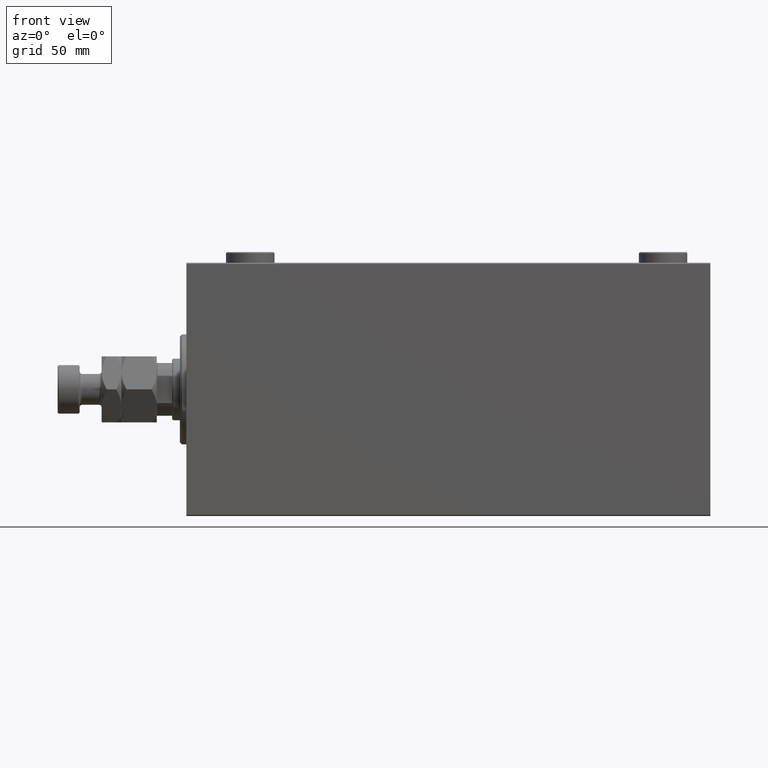
[diagram: clean part render]
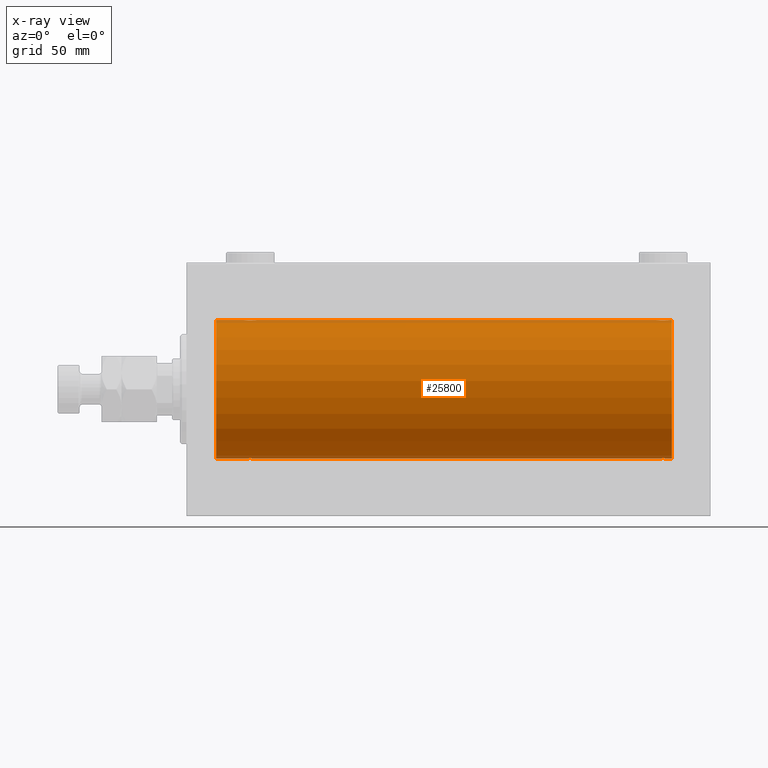
[diagram: x-ray — body ghosted, one internal face saturated and labeled with its STEP entity id]
A machine part, front view, then the same camera in x-ray: the body is ghosted and one INTERNAL B-rep face — a face not visible from any outside direction — is saturated and labeled: STEP entity #25800.
In plain terms, the highlighted cylindrical surface (partial cylindrical patch) has radius 31.5 mm, axis along (-1, -0, -0).
Its self-contained STEP definition (entity closure, byte-faithful):
#451 = CARTESIAN_POINT ( 'NONE',  ( 29.20046458974095671, -2.999845816735294157, -31.35683219171744085 ) ) ;
#1158 = CARTESIAN_POINT ( 'NONE',  ( 219.4999999999999716, 4.699731104275013306E-15, 31.50000000000000000 ) ) ;
#1202 = LINE ( 'NONE', #20602, #40269 ) ;
#1287 = DIRECTION ( 'NONE',  ( 0.000000000000000000, 0.000000000000000000, 1.000000000000000000 ) ) ;
#1400 = CARTESIAN_POINT ( 'NONE',  ( 28.03484270189360217, -2.847307171789034808, -31.37114183851420179 ) ) ;
#1773 = CARTESIAN_POINT ( 'NONE',  ( 213.8980785956084389, -1.506272792558333462, -31.46439306106695710 ) ) ;
#1790 = CARTESIAN_POINT ( 'NONE',  ( 30.82704225370267892, -2.387531469909770276, 31.40957782495776129 ) ) ;
#2378 = CARTESIAN_POINT ( 'NONE',  ( 213.4999999999999716, -2.739609923574792981E-14, -31.50000000000000000 ) ) ;
#3203 = CARTESIAN_POINT ( 'NONE',  ( 220.5000000000000000, 0.000000000000000000, 0.000000000000000000 ) ) ;
#3331 = CARTESIAN_POINT ( 'NONE',  ( 31.84660463742499559, -0.9669616078781945179, -31.48567319468626735 ) ) ;
#3435 = ORIENTED_EDGE ( 'NONE', *, *, #4041, .T. ) ;
#3653 = CIRCLE ( 'NONE', #36254, 31.50000000000000000 ) ;
#4020 = ORIENTED_EDGE ( 'NONE', *, *, #24103, .T. ) ;
#4034 = CARTESIAN_POINT ( 'NONE',  ( 30.50456285006998769, -2.602826974226392309, -31.39247100434485560 ) ) ;
#4041 = EDGE_CURVE ( 'NONE', #25665, #26599, #35776, .T. ) ;
#4261 = CARTESIAN_POINT ( 'NONE',  ( 216.8911454733994049, -2.980809450819698281, 31.35867074198615967 ) ) ;
#4501 = CARTESIAN_POINT ( 'NONE',  ( 213.5958054926194052, -0.7775502215293850217, 31.49099686045560276 ) ) ;
#4743 = CARTESIAN_POINT ( 'NONE',  ( 26.30470357640989576, -1.331741824817665343, -31.47235367475392920 ) ) ;
#5137 = CARTESIAN_POINT ( 'NONE',  ( 220.5000000000000000, 0.000000000000000000, 31.50000000000000000 ) ) ;
#5359 = CARTESIAN_POINT ( 'NONE',  ( 27.01539640075335669, -2.258226318633785201, 31.41925597582825702 ) ) ;
#5442 = CARTESIAN_POINT ( 'NONE',  ( 26.39807859560848158, -1.506272792558332130, -31.46439306106697131 ) ) ;
#5570 = CARTESIAN_POINT ( 'NONE',  ( 215.1713458531248477, -2.696917666262923952, -31.38442820068732075 ) ) ;
#5813 = CARTESIAN_POINT ( 'NONE',  ( 29.96515729810641204, -2.847307171789037028, 31.37114183851420890 ) ) ;
#6046 = CARTESIAN_POINT ( 'NONE',  ( 29.19582294439440417, -3.000152387858486147, 31.35680286115499626 ) ) ;
#6113 = CARTESIAN_POINT ( 'NONE',  ( 219.4999999999999716, 3.857637396132320472E-15, -31.50000000000000000 ) ) ;
#6279 = CARTESIAN_POINT ( 'NONE',  ( 31.25824501903266039, -1.984587626072074285, 31.43772577203672469 ) ) ;
#6301 = DIRECTION ( 'NONE',  ( 0.000000000000000000, 0.000000000000000000, 1.000000000000000000 ) ) ;
#6486 = CARTESIAN_POINT ( 'NONE',  ( 214.9990184370385009, -2.604888532024808523, -31.39229907792057972 ) ) ;
#7599 = CARTESIAN_POINT ( 'NONE',  ( 214.2390453754387352, -1.981494824113333442, 31.43792153503156683 ) ) ;
#7600 = CARTESIAN_POINT ( 'NONE',  ( 30.33239958099164824, -2.695056442718529954, -31.38458855656185875 ) ) ;
#7839 = CARTESIAN_POINT ( 'NONE',  ( 216.1046588899990866, -2.980257240990053624, 31.35872356503797320 ) ) ;
#8030 = CARTESIAN_POINT ( 'NONE',  ( 26.00000000000000355, -2.117263226567934635E-23, 31.50000000000000000 ) ) ;
#8310 = CARTESIAN_POINT ( 'NONE',  ( 213.8028576116330157, -1.328004386210311472, 31.47251238182141719 ) ) ;
#8437 = DIRECTION ( 'NONE',  ( -1.000000000000000000, 0.000000000000000000, 0.000000000000000000 ) ) ;
#8559 = CARTESIAN_POINT ( 'NONE',  ( 218.4814346287303408, -2.261012035264779119, 31.41905495618428645 ) ) ;
#8786 = CARTESIAN_POINT ( 'NONE',  ( 26.00000000000000355, -0.3965830985361813443, -31.50000000000000711 ) ) ;
#9167 = CARTESIAN_POINT ( 'NONE',  ( 26.09580549261944427, -0.7775502215293862429, 31.49099686045558144 ) ) ;
#9375 = CARTESIAN_POINT ( 'NONE',  ( 213.4999999999999716, -2.739609923574792981E-14, -31.50000000000000000 ) ) ;
#9382 = VERTEX_POINT ( 'NONE', #22783 ) ;
#9394 = CARTESIAN_POINT ( 'NONE',  ( 26.00000000000001066, -0.1958045626907463088, 31.50000000000000711 ) ) ;
#9438 = LINE ( 'NONE', #31496, #31753 ) ;
#9471 = CARTESIAN_POINT ( 'NONE',  ( 219.4999999999999716, -0.3965830985361761263, 31.50000000000000000 ) ) ;
#9600 = CARTESIAN_POINT ( 'NONE',  ( 218.7609546245612364, -1.981494824113325226, -31.43792153503156683 ) ) ;
#9619 = CARTESIAN_POINT ( 'NONE',  ( 26.00000000000000355, -2.117263226567934635E-23, 31.50000000000000000 ) ) ;
#10027 = AXIS2_PLACEMENT_3D ( 'NONE', #26472, #8437, #1287 ) ;
#10931 = CARTESIAN_POINT ( 'NONE',  ( 215.1676004190082665, -2.695056442718522849, 31.38458855656185165 ) ) ;
#11158 = CARTESIAN_POINT ( 'NONE',  ( 32.00000000000000000, 3.857637396137448068E-15, -31.50000000000000000 ) ) ;
#11396 = CARTESIAN_POINT ( 'NONE',  ( 215.5305554434148121, -2.845838211243326032, 31.37127560316188024 ) ) ;
#11631 = CARTESIAN_POINT ( 'NONE',  ( 218.0009815629614707, -2.604888532024791203, 31.39229907792058683 ) ) ;
#12239 = DIRECTION ( 'NONE',  ( -1.000000000000000000, -0.000000000000000000, -0.000000000000000000 ) ) ;
#12341 = CARTESIAN_POINT ( 'NONE',  ( 219.1019214043915326, -1.506272792558311702, 31.46439306106696421 ) ) ;
#12863 = ORIENTED_EDGE ( 'NONE', *, *, #40443, .F. ) ;
#12928 = CARTESIAN_POINT ( 'NONE',  ( 213.5797933704996581, -0.7905881588836380924, -31.49214662150069799 ) ) ;
#12993 = DIRECTION ( 'NONE',  ( -1.000000000000000000, -0.000000000000000000, -0.000000000000000000 ) ) ;
#13433 = DIRECTION ( 'NONE',  ( -1.000000000000000000, 0.000000000000000000, 0.000000000000000000 ) ) ;
#14321 = EDGE_CURVE ( 'NONE', #14878, #43253, #35633, .T. ) ;
#14475 = ORIENTED_EDGE ( 'NONE', *, *, #15164, .F. ) ;
#14538 = CARTESIAN_POINT ( 'NONE',  ( 213.4999999999999716, -2.118130973563677748E-23, 31.50000000000000000 ) ) ;
#14713 = CARTESIAN_POINT ( 'NONE',  ( 31.90419450738055218, -0.7775502215293819130, -31.49099686045559565 ) ) ;
#14878 = VERTEX_POINT ( 'NONE', #8030 ) ;
#15164 = EDGE_CURVE ( 'NONE', #25733, #16286, #9438, .T. ) ;
#15191 = CARTESIAN_POINT ( 'NONE',  ( 217.2746909443436891, -2.904836261170101519, 31.36579955910872286 ) ) ;
#15426 = CARTESIAN_POINT ( 'NONE',  ( 216.6958229443943651, -3.000152387858483927, 31.35680286115499626 ) ) ;
#15637 = ORIENTED_EDGE ( 'NONE', *, *, #42421, .T. ) ;
#16133 = CARTESIAN_POINT ( 'NONE',  ( 218.7582450190326142, -1.984587626072069844, 31.43772577203671759 ) ) ;
#16260 = CARTESIAN_POINT ( 'NONE',  ( 213.8047035764099348, -1.331741824817684439, -31.47235367475394341 ) ) ;
#16277 = CARTESIAN_POINT ( 'NONE',  ( 31.69529642359010424, -1.331741824817659348, 31.47235367475393630 ) ) ;
#16286 = VERTEX_POINT ( 'NONE', #16914 ) ;
#16403 = ORIENTED_EDGE ( 'NONE', *, *, #45786, .T. ) ;
#16504 = CARTESIAN_POINT ( 'NONE',  ( 26.01898490608483527, -0.3904857149112033743, 31.49817436802766935 ) ) ;
#16914 = CARTESIAN_POINT ( 'NONE',  ( 219.4999999999999716, 4.699731104275013306E-15, 31.50000000000000000 ) ) ;
#16953 = CARTESIAN_POINT ( 'NONE',  ( 219.1041778127472526, -1.502389880413004031, -31.46458023642405166 ) ) ;
#16971 = CARTESIAN_POINT ( 'NONE',  ( 30.50098156296146712, -2.604888532024788983, 31.39229907792058683 ) ) ;
#17031 = DIRECTION ( 'NONE',  ( -1.000000000000000000, -0.000000000000000000, -0.000000000000000000 ) ) ;
#17258 = LINE ( 'NONE', #31740, #37961 ) ;
#17599 = DIRECTION ( 'NONE',  ( -1.000000000000000000, -0.000000000000000000, -0.000000000000000000 ) ) ;
#17817 = CARTESIAN_POINT ( 'NONE',  ( 31.26095462456130747, -1.981494824113326114, -31.43792153503156683 ) ) ;
#17925 = CYLINDRICAL_SURFACE ( 'NONE', #41840, 31.50000000000000000 ) ;
#18514 = CARTESIAN_POINT ( 'NONE',  ( 29.77881912642320827, -2.903733559410679455, -31.36590199989303684 ) ) ;
#18745 = CARTESIAN_POINT ( 'NONE',  ( 217.4651572981064191, -2.847307171789025926, 31.37114183851420179 ) ) ;
#19052 = CARTESIAN_POINT ( 'NONE',  ( 32.00000000000000000, -3.906065418435112189E-16, 31.50000000000000000 ) ) ;
#19108 = EDGE_CURVE ( 'NONE', #9382, #25665, #44511, .T. ) ;
#19458 = CARTESIAN_POINT ( 'NONE',  ( 28.80417705560560648, -3.000152387858484371, -31.35680286115500337 ) ) ;
#19690 = CARTESIAN_POINT ( 'NONE',  ( 218.8824687226662888, -1.833765390051030009, 31.44700610425690712 ) ) ;
#19692 = CARTESIAN_POINT ( 'NONE',  ( 27.49901843703856130, -2.604888532024793424, -31.39229907792058683 ) ) ;
#20071 = CARTESIAN_POINT ( 'NONE',  ( 27.49543714993000876, -2.602826974226395862, 31.39247100434485560 ) ) ;
#20521 = CARTESIAN_POINT ( 'NONE',  ( 219.4041945073804811, -0.7775502215293821351, -31.49099686045559565 ) ) ;
#20540 = CARTESIAN_POINT ( 'NONE',  ( 29.39114547339941552, -2.980809450819701834, 31.35867074198615967 ) ) ;
#20602 = CARTESIAN_POINT ( 'NONE',  ( 220.5000000000000000, 0.000000000000000000, 31.50000000000000000 ) ) ;
#20750 = CARTESIAN_POINT ( 'NONE',  ( 218.8850144227692169, -1.830470878313884553, -31.44719957596828763 ) ) ;
#20767 = CARTESIAN_POINT ( 'NONE',  ( 31.38246872266631371, -1.833765390051040223, 31.44700610425690712 ) ) ;
#21053 = DIRECTION ( 'NONE',  ( -1.000000000000000000, -0.000000000000000000, -0.000000000000000000 ) ) ;
#21549 = EDGE_CURVE ( 'NONE', #14878, #26262, #43189, .T. ) ;
#22083 = CARTESIAN_POINT ( 'NONE',  ( 213.8958221872526622, -1.502389880412993595, 31.46458023642405877 ) ) ;
#22551 = CARTESIAN_POINT ( 'NONE',  ( 213.4999999999999716, -2.118130973563677748E-23, 31.50000000000000000 ) ) ;
#22689 = VERTEX_POINT ( 'NONE', #14538 ) ;
#22783 = CARTESIAN_POINT ( 'NONE',  ( 32.00000000000000000, 3.857637396137448068E-15, -31.50000000000000000 ) ) ;
#22908 = CARTESIAN_POINT ( 'NONE',  ( 13.50000000000001243, 3.857637417314162689E-15, -31.50000000000000000 ) ) ;
#23405 = CARTESIAN_POINT ( 'NONE',  ( 28.03055544341478722, -2.845838211243333138, 31.37127560316186603 ) ) ;
#23620 = CARTESIAN_POINT ( 'NONE',  ( 217.4694445565852448, -2.845838211243344684, -31.37127560316186603 ) ) ;
#23641 = CARTESIAN_POINT ( 'NONE',  ( 26.39582218725271900, -1.502389880413001144, 31.46458023642405166 ) ) ;
#23657 = CARTESIAN_POINT ( 'NONE',  ( 26.00000000000000355, -6.595038141055444136E-15, -31.50000000000000000 ) ) ;
#23845 = CARTESIAN_POINT ( 'NONE',  ( 218.3304369148700346, -2.384935707362433099, -31.40977595730572958 ) ) ;
#23864 = CARTESIAN_POINT ( 'NONE',  ( 28.79953541025904684, -2.999845816735297266, 31.35683219171744796 ) ) ;
#24072 = CARTESIAN_POINT ( 'NONE',  ( 219.4810150939152038, -0.3904857149112007098, -31.49817436802768000 ) ) ;
#24103 = EDGE_CURVE ( 'NONE', #34089, #9382, #17258, .T. ) ;
#24327 = CARTESIAN_POINT ( 'NONE',  ( 27.66760041900836953, -2.695056442718533507, 31.38458855656185875 ) ) ;
#24613 = CARTESIAN_POINT ( 'NONE',  ( 220.5000000000000000, 3.857637417314162689E-15, -31.50000000000000000 ) ) ;
#24714 = CARTESIAN_POINT ( 'NONE',  ( 220.5000000000000000, 0.000000000000000000, 31.50000000000000000 ) ) ;
#25273 = CARTESIAN_POINT ( 'NONE',  ( 32.00000000000000000, -3.906065418435112189E-16, 31.50000000000000000 ) ) ;
#25410 = CARTESIAN_POINT ( 'NONE',  ( 215.7211808735767704, -2.903733559410683895, 31.36590199989304395 ) ) ;
#25642 = CARTESIAN_POINT ( 'NONE',  ( 213.5000000000000284, -0.1958045626907475856, 31.50000000000000000 ) ) ;
#25665 = VERTEX_POINT ( 'NONE', #23657 ) ;
#25733 = VERTEX_POINT ( 'NONE', #5137 ) ;
#25800 = ADVANCED_FACE ( 'NONE', ( #27902 ), #17925, .F. ) ;
#26110 = CARTESIAN_POINT ( 'NONE',  ( 27.67134585312494011, -2.696917666262907520, -31.38442820068732786 ) ) ;
#26262 = VERTEX_POINT ( 'NONE', #19052 ) ;
#26472 = CARTESIAN_POINT ( 'NONE',  ( 13.50000000000001243, 0.000000000000000000, 0.000000000000000000 ) ) ;
#26589 = CARTESIAN_POINT ( 'NONE',  ( 28.22530905565627179, -2.904836261170103739, -31.36579955910872286 ) ) ;
#26599 = VERTEX_POINT ( 'NONE', #22908 ) ;
#26671 = VECTOR ( 'NONE', #12239, 1000.000000000000000 ) ;
#26824 = CARTESIAN_POINT ( 'NONE',  ( 26.07979337049960478, -0.7905881588836203289, -31.49214662150069088 ) ) ;
#26967 = CARTESIAN_POINT ( 'NONE',  ( 28.60465888999904749, -2.980257240990054513, 31.35872356503797320 ) ) ;
#27177 = CARTESIAN_POINT ( 'NONE',  ( 218.0045628500700161, -2.602826974226396306, -31.39247100434486271 ) ) ;
#27278 = CARTESIAN_POINT ( 'NONE',  ( 219.1952964235900367, -1.331741824817656683, 31.47235367475393630 ) ) ;
#27391 = B_SPLINE_CURVE_WITH_KNOTS ( 'NONE', 3,
 ( #27639, #30971, #24072, #20521, #34997, #42134, #16953, #20750, #9600, #31434, #23845, #27177, #31661, #23620, #31206, #34761, #27414, #42362, #45249, #35218, #41911, #5570, #6486, #38336, #42599, #38568, #45944, #1773, #16260, #12928, #38106, #9375 ),
 .UNSPECIFIED., .F., .F.,
 ( 4, 2, 2, 2, 2, 2, 2, 2, 2, 2, 2, 2, 2, 2, 2, 4 ),
 ( 0.009384682587134623999, 0.009971088165454023225, 0.01055749374377342419, 0.01114389932209282341, 0.01173030490041222264, 0.01231671047873162186, 0.01290311605705102109, 0.01348952163537042032, 0.01407592721368982128, 0.01466233279200921877, 0.01524873837032861973, 0.01583514394864802069, 0.01642154952696741818, 0.01700795510528681914, 0.01759436068360622010, 0.01876717184024502202 ),
 .UNSPECIFIED. ) ;
#27414 = CARTESIAN_POINT ( 'NONE',  ( 216.7004645897409887, -2.999845816735311477, -31.35683219171744796 ) ) ;
#27639 = CARTESIAN_POINT ( 'NONE',  ( 219.4999999999999716, 3.857637396132320472E-15, -31.50000000000000000 ) ) ;
#27884 = CARTESIAN_POINT ( 'NONE',  ( 30.98143462873041898, -2.261012035264782227, 31.41905495618429356 ) ) ;
#27902 = FACE_OUTER_BOUND ( 'NONE', #31920, .T. ) ;
#28578 = CARTESIAN_POINT ( 'NONE',  ( 220.5000000000000000, 3.857637417314162689E-15, -31.50000000000000000 ) ) ;
#28822 = ORIENTED_EDGE ( 'NONE', *, *, #14321, .F. ) ;
#29193 = CARTESIAN_POINT ( 'NONE',  ( 31.69714238836700915, -1.328004386210301480, -31.47251238182141009 ) ) ;
#29315 = B_SPLINE_CURVE_WITH_KNOTS ( 'NONE', 3,
 ( #22551, #25642, #40134, #4501, #29421, #8310, #22083, #43935, #7599, #36559, #33473, #47048, #10931, #11396, #25410, #7839, #36794, #15426, #4261, #15191, #18745, #33229, #11631, #29902, #8559, #16133, #19690, #12341, #27278, #30140, #9471, #1158 ),
 .UNSPECIFIED., .F., .F.,
 ( 4, 2, 2, 2, 2, 2, 2, 2, 2, 2, 2, 2, 2, 2, 2, 4 ),
 ( 0.009384682587134643081, 0.009971088165454042307, 0.01055749374377344327, 0.01114389932209284423, 0.01173030490041224345, 0.01231671047873164268, 0.01290311605705104364, 0.01348952163537044460, 0.01407592721368984383, 0.01466233279200924305, 0.01524873837032864402, 0.01583514394864804498, 0.01642154952696744594, 0.01700795510528684690, 0.01759436068360624439, 0.01876717184024504284 ),
 .UNSPECIFIED. ) ;
#29421 = CARTESIAN_POINT ( 'NONE',  ( 213.6533953625749973, -0.9669616078782046209, 31.48567319468627801 ) ) ;
#29671 = CARTESIAN_POINT ( 'NONE',  ( 26.74175498096735026, -1.984587626072075617, -31.43772577203673180 ) ) ;
#29902 = CARTESIAN_POINT ( 'NONE',  ( 218.3270422537026718, -2.387531469909772941, 31.40957782495776840 ) ) ;
#29903 = CARTESIAN_POINT ( 'NONE',  ( 26.61753127733371116, -1.833765390051047106, -31.44700610425690002 ) ) ;
#30140 = CARTESIAN_POINT ( 'NONE',  ( 219.4202066295003419, -0.7905881588836107809, 31.49214662150069088 ) ) ;
#30235 = EDGE_CURVE ( 'NONE', #39252, #25733, #3653, .T. ) ;
#30616 = CARTESIAN_POINT ( 'NONE',  ( 27.01856537126958813, -2.261012035264781783, -31.41905495618428645 ) ) ;
#30759 = CARTESIAN_POINT ( 'NONE',  ( 31.92020662950040943, -0.7905881588836116691, 31.49214662150068378 ) ) ;
#30971 = CARTESIAN_POINT ( 'NONE',  ( 219.4999999999999432, -0.1958045626907443937, -31.49999999999999289 ) ) ;
#31206 = CARTESIAN_POINT ( 'NONE',  ( 217.2788191264232012, -2.903733559410694109, -31.36590199989303684 ) ) ;
#31434 = CARTESIAN_POINT ( 'NONE',  ( 218.4846035992466682, -2.258226318633784313, -31.41925597582826413 ) ) ;
#31451 = CARTESIAN_POINT ( 'NONE',  ( 27.16956308512997964, -2.384935707362437096, 31.40977595730572958 ) ) ;
#31496 = CARTESIAN_POINT ( 'NONE',  ( 220.5000000000000000, 0.000000000000000000, 31.50000000000000000 ) ) ;
#31661 = CARTESIAN_POINT ( 'NONE',  ( 217.8323995809916198, -2.695056442718541501, -31.38458855656185875 ) ) ;
#31681 = CARTESIAN_POINT ( 'NONE',  ( 26.15339536257501507, -0.9669616078781987367, 31.48567319468626735 ) ) ;
#31706 = CARTESIAN_POINT ( 'NONE',  ( 220.5000000000000000, 0.000000000000000000, 0.000000000000000000 ) ) ;
#31740 = CARTESIAN_POINT ( 'NONE',  ( 220.5000000000000000, 3.857637417314162689E-15, -31.50000000000000000 ) ) ;
#31753 = VECTOR ( 'NONE', #12993, 1000.000000000000000 ) ;
#31920 = EDGE_LOOP ( 'NONE', ( #34003, #16403, #43541, #4020, #45348, #3435, #40095, #28822, #39182, #12863, #15637, #14475 ) ) ;
#32295 = CARTESIAN_POINT ( 'NONE',  ( 29.96944455658523054, -2.845838211243329585, -31.37127560316186603 ) ) ;
#32768 = CARTESIAN_POINT ( 'NONE',  ( 31.98101509391517538, -0.3904857149111993775, -31.49817436802766224 ) ) ;
#32994 = CARTESIAN_POINT ( 'NONE',  ( 29.39534111000094541, -2.980257240990050960, -31.35872356503797320 ) ) ;
#33077 = VECTOR ( 'NONE', #21053, 1000.000000000000000 ) ;
#33111 = CARTESIAN_POINT ( 'NONE',  ( 13.50000000000001243, 0.000000000000000000, 31.50000000000000000 ) ) ;
#33229 = CARTESIAN_POINT ( 'NONE',  ( 217.8286541468750670, -2.696917666262893309, 31.38442820068731365 ) ) ;
#33473 = CARTESIAN_POINT ( 'NONE',  ( 214.6695630851299086, -2.384935707362434876, 31.40977595730572958 ) ) ;
#33932 = CARTESIAN_POINT ( 'NONE',  ( 28.60885452660059869, -2.980809450819698725, -31.35867074198615256 ) ) ;
#33997 = VECTOR ( 'NONE', #17599, 1000.000000000000000 ) ;
#34003 = ORIENTED_EDGE ( 'NONE', *, *, #30235, .F. ) ;
#34089 = VERTEX_POINT ( 'NONE', #2378 ) ;
#34322 = CARTESIAN_POINT ( 'NONE',  ( 29.77469094434372821, -2.904836261170106404, 31.36579955910873707 ) ) ;
#34437 = VERTEX_POINT ( 'NONE', #6113 ) ;
#34545 = CARTESIAN_POINT ( 'NONE',  ( 28.22118087357680238, -2.903733559410683895, 31.36590199989303684 ) ) ;
#34761 = CARTESIAN_POINT ( 'NONE',  ( 216.8953411100010271, -2.980257240990069167, -31.35872356503798741 ) ) ;
#34997 = CARTESIAN_POINT ( 'NONE',  ( 219.3466046374250311, -0.9669616078781981816, -31.48567319468627446 ) ) ;
#35016 = CARTESIAN_POINT ( 'NONE',  ( 30.32865414687508832, -2.696917666262907520, 31.38442820068731365 ) ) ;
#35218 = CARTESIAN_POINT ( 'NONE',  ( 215.7253090556562540, -2.904836261170126832, -31.36579955910873707 ) ) ;
#35237 = CARTESIAN_POINT ( 'NONE',  ( 31.60192140439154684, -1.506272792558323470, 31.46439306106697131 ) ) ;
#35633 = LINE ( 'NONE', #24714, #33997 ) ;
#35776 = LINE ( 'NONE', #24613, #33077 ) ;
#35861 = CARTESIAN_POINT ( 'NONE',  ( 32.00000000000001421, -0.1958045626907418957, -31.50000000000000711 ) ) ;
#36254 = AXIS2_PLACEMENT_3D ( 'NONE', #31706, #13433, #6301 ) ;
#36559 = CARTESIAN_POINT ( 'NONE',  ( 214.5153964007533887, -2.258226318633788754, 31.41925597582826413 ) ) ;
#36561 = CARTESIAN_POINT ( 'NONE',  ( 30.83043691487002746, -2.384935707362433988, -31.40977595730572958 ) ) ;
#36794 = CARTESIAN_POINT ( 'NONE',  ( 216.2995354102589545, -2.999845816735293713, 31.35683219171744796 ) ) ;
#36795 = CARTESIAN_POINT ( 'NONE',  ( 31.38501442276926667, -1.830470878313872563, -31.44719957596828763 ) ) ;
#37961 = VECTOR ( 'NONE', #39756, 1000.000000000000000 ) ;
#38106 = CARTESIAN_POINT ( 'NONE',  ( 213.4999999999999716, -0.3965830985362022165, -31.50000000000001421 ) ) ;
#38336 = CARTESIAN_POINT ( 'NONE',  ( 214.6729577462972713, -2.387531469909791149, -31.40957782495775419 ) ) ;
#38568 = CARTESIAN_POINT ( 'NONE',  ( 214.2417549809673289, -1.984587626072089828, -31.43772577203671759 ) ) ;
#38589 = CARTESIAN_POINT ( 'NONE',  ( 26.73904537543869608, -1.981494824113328779, 31.43792153503155973 ) ) ;
#38827 = CARTESIAN_POINT ( 'NONE',  ( 26.30285761163300151, -1.328004386210305698, 31.47251238182140298 ) ) ;
#39072 = DIRECTION ( 'NONE',  ( 0.000000000000000000, 0.000000000000000000, 1.000000000000000000 ) ) ;
#39182 = ORIENTED_EDGE ( 'NONE', *, *, #21549, .T. ) ;
#39252 = VERTEX_POINT ( 'NONE', #28578 ) ;
#39756 = DIRECTION ( 'NONE',  ( -1.000000000000000000, -0.000000000000000000, -0.000000000000000000 ) ) ;
#40095 = ORIENTED_EDGE ( 'NONE', *, *, #43269, .T. ) ;
#40134 = CARTESIAN_POINT ( 'NONE',  ( 213.5189849060847678, -0.3904857149112037629, 31.49817436802766935 ) ) ;
#40136 = CARTESIAN_POINT ( 'NONE',  ( 30.98460359924664687, -2.258226318633781649, -31.41925597582825702 ) ) ;
#40269 = VECTOR ( 'NONE', #17031, 1000.000000000000000 ) ;
#40377 = CIRCLE ( 'NONE', #10027, 31.50000000000000000 ) ;
#40443 = EDGE_CURVE ( 'NONE', #22689, #26262, #1202, .T. ) ;
#40606 = CARTESIAN_POINT ( 'NONE',  ( 26.00000000000000355, -6.595038141055444136E-15, -31.50000000000000000 ) ) ;
#41439 = LINE ( 'NONE', #44070, #26671 ) ;
#41840 = AXIS2_PLACEMENT_3D ( 'NONE', #3203, #42866, #39072 ) ;
#41911 = CARTESIAN_POINT ( 'NONE',  ( 215.5348427018935809, -2.847307171789053015, -31.37114183851420179 ) ) ;
#42134 = CARTESIAN_POINT ( 'NONE',  ( 219.1971423883669843, -1.328004386210305476, -31.47251238182141009 ) ) ;
#42362 = CARTESIAN_POINT ( 'NONE',  ( 216.3041770556055496, -3.000152387858503911, -31.35680286115500337 ) ) ;
#42421 = EDGE_CURVE ( 'NONE', #22689, #16286, #29315, .T. ) ;
#42599 = CARTESIAN_POINT ( 'NONE',  ( 214.5185653712696023, -2.261012035264798214, -31.41905495618427935 ) ) ;
#42866 = DIRECTION ( 'NONE',  ( -1.000000000000000000, -0.000000000000000000, -0.000000000000000000 ) ) ;
#43189 = B_SPLINE_CURVE_WITH_KNOTS ( 'NONE', 3,
 ( #9619, #9394, #16504, #9167, #31681, #38827, #23641, #45964, #38589, #5359, #31451, #20071, #24327, #23405, #34545, #26967, #23864, #6046, #20540, #34322, #5813, #35016, #16971, #1790, #27884, #6279, #20767, #35237, #16277, #30759, #45266, #25273 ),
 .UNSPECIFIED., .F., .F.,
 ( 4, 2, 2, 2, 2, 2, 2, 2, 2, 2, 2, 2, 2, 2, 2, 4 ),
 ( 0.009384682587134639611, 0.009971088165454038837, 0.01055749374377343980, 0.01114389932209284076, 0.01173030490041223999, 0.01231671047873163921, 0.01290311605705104017, 0.01348952163537044113, 0.01407592721368984036, 0.01466233279200923958, 0.01524873837032864055, 0.01583514394864804151, 0.01642154952696744247, 0.01700795510528683996, 0.01759436068360624092, 0.01876717184024503243 ),
 .UNSPECIFIED. ) ;
#43253 = VERTEX_POINT ( 'NONE', #33111 ) ;
#43269 = EDGE_CURVE ( 'NONE', #26599, #43253, #40377, .T. ) ;
#43541 = ORIENTED_EDGE ( 'NONE', *, *, #45877, .T. ) ;
#43699 = CARTESIAN_POINT ( 'NONE',  ( 31.60417781274729165, -1.502389880412996259, -31.46458023642406587 ) ) ;
#43935 = CARTESIAN_POINT ( 'NONE',  ( 214.1149855772307262, -1.830470878313871008, 31.44719957596828763 ) ) ;
#44070 = CARTESIAN_POINT ( 'NONE',  ( 220.5000000000000000, 3.857637417314162689E-15, -31.50000000000000000 ) ) ;
#44406 = CARTESIAN_POINT ( 'NONE',  ( 27.17295774629732819, -2.387531469909775605, -31.40957782495775419 ) ) ;
#44511 = B_SPLINE_CURVE_WITH_KNOTS ( 'NONE', 3,
 ( #11158, #35861, #32768, #14713, #3331, #29193, #43699, #36795, #17817, #40136, #36561, #4034, #7600, #32295, #18514, #32994, #451, #19458, #33932, #26589, #1400, #26110, #19692, #44406, #30616, #29671, #29903, #5442, #4743, #26824, #8786, #40606 ),
 .UNSPECIFIED., .F., .F.,
 ( 4, 2, 2, 2, 2, 2, 2, 2, 2, 2, 2, 2, 2, 2, 2, 4 ),
 ( 0.009384682587134662163, 0.009971088165454068328, 0.01055749374377347449, 0.01114389932209288066, 0.01173030490041228682, 0.01231671047873168605, 0.01290311605705108527, 0.01348952163537048277, 0.01407592721368988199, 0.01466233279200928122, 0.01524873837032868044, 0.01583514394864807967, 0.01642154952696747716, 0.01700795510528687812, 0.01759436068360627908, 0.01876717184024507407 ),
 .UNSPECIFIED. ) ;
#45249 = CARTESIAN_POINT ( 'NONE',  ( 216.1088545266006520, -2.980809450819720041, -31.35867074198615967 ) ) ;
#45266 = CARTESIAN_POINT ( 'NONE',  ( 32.00000000000001421, -0.3965830985361748495, 31.50000000000001421 ) ) ;
#45348 = ORIENTED_EDGE ( 'NONE', *, *, #19108, .T. ) ;
#45786 = EDGE_CURVE ( 'NONE', #39252, #34437, #41439, .T. ) ;
#45877 = EDGE_CURVE ( 'NONE', #34437, #34089, #27391, .T. ) ;
#45944 = CARTESIAN_POINT ( 'NONE',  ( 214.1175312773336827, -1.833765390051052213, -31.44700610425690002 ) ) ;
#45964 = CARTESIAN_POINT ( 'NONE',  ( 26.61498557723073333, -1.830470878313877892, 31.44719957596828053 ) ) ;
#47048 = CARTESIAN_POINT ( 'NONE',  ( 214.9954371499299839, -2.602826974226394086, 31.39247100434485560 ) ) ;